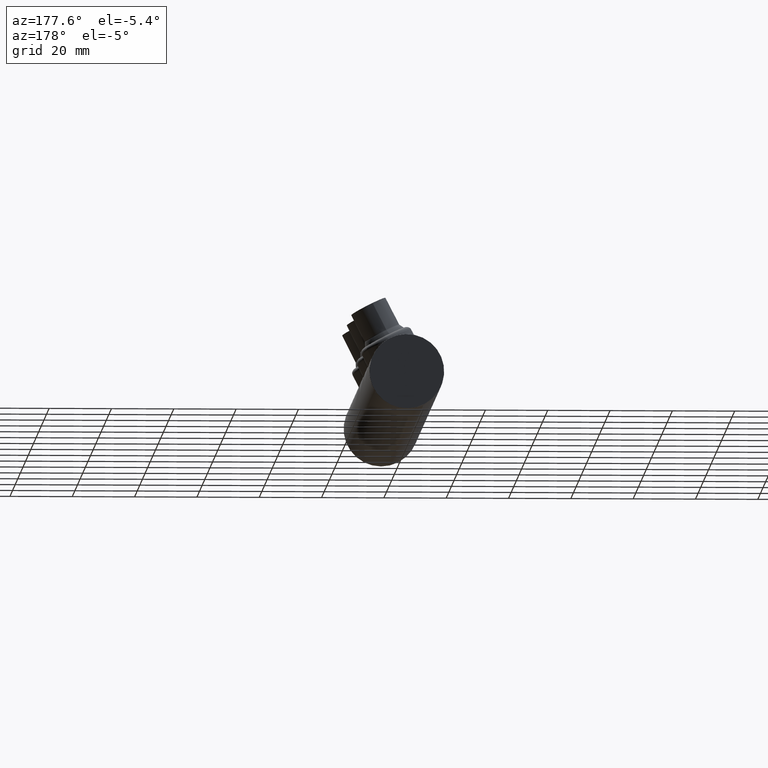
[diagram: clean part render]
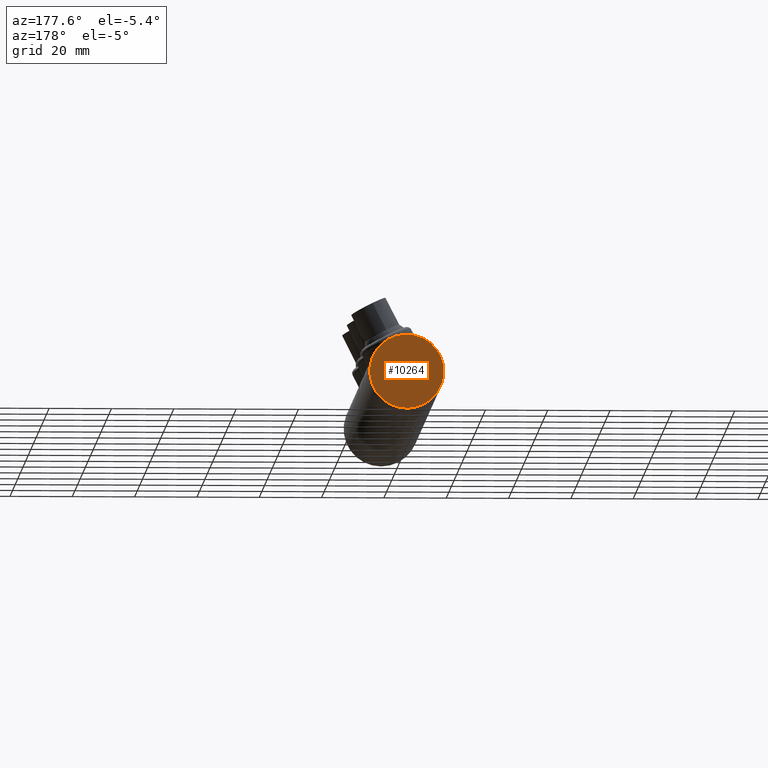
[diagram: same view with one face highlighted and labeled with its STEP entity id]
A machine part, auxiliary view. The second image highlights one B-rep face of the part: STEP entity #10264.
In plain terms, the highlighted planar face has unit normal (0, 1, 0).
Its self-contained STEP definition (entity closure, byte-faithful):
#3087 = CIRCLE ( 'NONE', #14569, 11.90000000000000036 ) ;
#3320 = DIRECTION ( 'NONE',  ( 0.000000000000000000, 1.000000000000000000, 0.000000000000000000 ) ) ;
#3525 = EDGE_CURVE ( 'NONE', #9837, #4036, #3087, .T. ) ;
#4036 = VERTEX_POINT ( 'NONE', #19628 ) ;
#7485 = DIRECTION ( 'NONE',  ( 0.000000000000000000, 1.000000000000000000, 0.000000000000000000 ) ) ;
#8037 = CARTESIAN_POINT ( 'NONE',  ( 0.000000000000000000, 7.200000000000000178, 0.000000000000000000 ) ) ;
#9837 = VERTEX_POINT ( 'NONE', #15623 ) ;
#10264 = ADVANCED_FACE ( 'NONE', ( #17998 ), #14959, .T. ) ;
#11044 = DIRECTION ( 'NONE',  ( 0.000000000000000000, 0.000000000000000000, 1.000000000000000000 ) ) ;
#12185 = CARTESIAN_POINT ( 'NONE',  ( 0.000000000000000000, 7.200000000000000178, 0.000000000000000000 ) ) ;
#12788 = CARTESIAN_POINT ( 'NONE',  ( 0.000000000000000000, 7.200000000000000178, 0.000000000000000000 ) ) ;
#13446 = DIRECTION ( 'NONE',  ( 0.000000000000000000, 1.000000000000000000, 0.000000000000000000 ) ) ;
#14569 = AXIS2_PLACEMENT_3D ( 'NONE', #12788, #7485, #11044 ) ;
#14959 = PLANE ( 'NONE',  #22582 ) ;
#15623 = CARTESIAN_POINT ( 'NONE',  ( 1.463452924981087269E-15, 7.200000000000000178, -11.90000000000000036 ) ) ;
#15867 = DIRECTION ( 'NONE',  ( 0.000000000000000000, 0.000000000000000000, 1.000000000000000000 ) ) ;
#16089 = ORIENTED_EDGE ( 'NONE', *, *, #19106, .T. ) ;
#16372 = ORIENTED_EDGE ( 'NONE', *, *, #3525, .T. ) ;
#17998 = FACE_OUTER_BOUND ( 'NONE', #19033, .T. ) ;
#19033 = EDGE_LOOP ( 'NONE', ( #16089, #16372 ) ) ;
#19106 = EDGE_CURVE ( 'NONE', #4036, #9837, #21970, .T. ) ;
#19628 = CARTESIAN_POINT ( 'NONE',  ( 0.000000000000000000, 7.200000000000000178, 11.90000000000000036 ) ) ;
#21017 = AXIS2_PLACEMENT_3D ( 'NONE', #12185, #3320, #15867 ) ;
#21970 = CIRCLE ( 'NONE', #21017, 11.90000000000000036 ) ;
#22186 = DIRECTION ( 'NONE',  ( 0.000000000000000000, -0.000000000000000000, 1.000000000000000000 ) ) ;
#22582 = AXIS2_PLACEMENT_3D ( 'NONE', #8037, #13446, #22186 ) ;